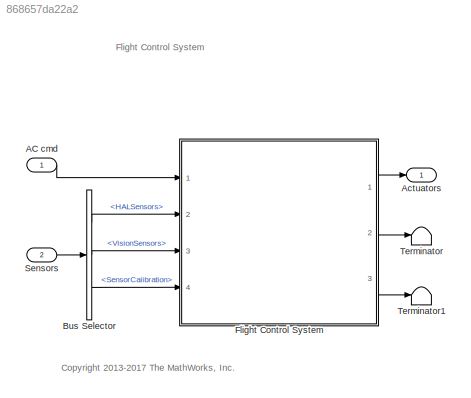
MODEL slx_868657da22a2
KIND model
CONFIG AbsTol = auto
CONFIG EnableMultiTasking = on
CONFIG FixedStep = Ts
CONFIG MaxStep = auto
CONFIG MinStep = auto
CONFIG RelTol = 1e-3
CONFIG SampleTimeConstraint = Unconstrained
CONFIG Solver = ode3
CONFIG SolverName = ode3
CONFIG StartTime = 0
CONFIG StopTime = 10.0
BLOCK [Inport] AC cmd
  BusOutputAsStruct = on
  IconDisplay = Port number
  OutDataTypeStr = Bus: CommandBus
BLOCK [Outport] Actuators
  IconDisplay = Port number
BLOCK [BusSelector] Bus Selector
  OutputAsBus = off
  OutputSignals = HALSensors,VisionSensors,SensorCalibration
  Ports = [1, 3]
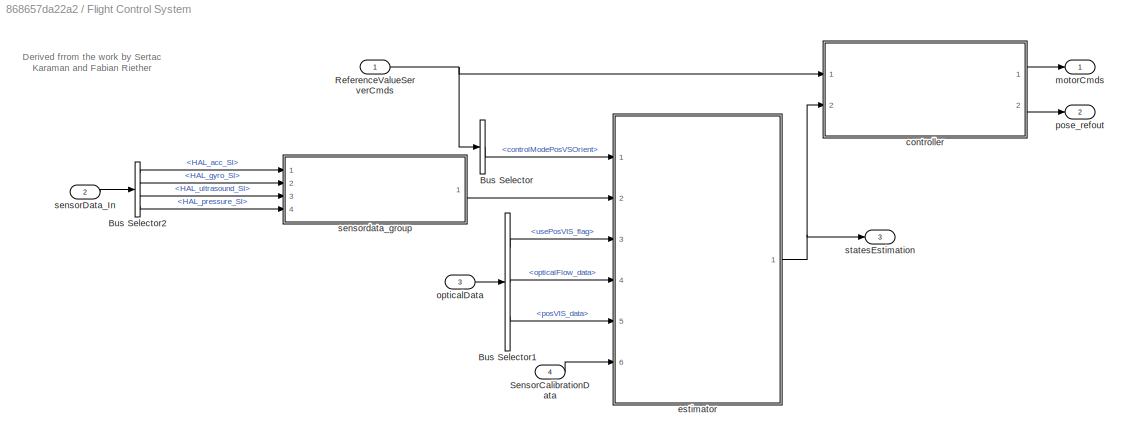
BLOCK [SubSystem] Flight Control System
  Ports = [4, 3]
  RTWSystemCode = Reusable function
  RequestExecContextInheritance = off
  Variant = off
BLOCK [BusSelector] Flight Control System/Bus Selector
  OutputAsBus = off
  OutputSignals = controlModePosVSOrient
  Ports = [1, 1]
BLOCK [BusSelector] Flight Control System/Bus Selector1
  OutputAsBus = off
  OutputSignals = usePosVIS_flag,opticalFlow_data,posVIS_data
  Ports = [1, 3]
BLOCK [BusSelector] Flight Control System/Bus Selector2
  OutputAsBus = off
  OutputSignals = HAL_acc_SI,HAL_gyro_SI,HAL_ultrasound_SI,HAL_pressure_SI
  Ports = [1, 4]
BLOCK [Inport] Flight Control System/ReferenceValueServerCmds
  IconDisplay = Port number
BLOCK [Inport] Flight Control System/SensorCalibrationData
  IconDisplay = Port number
  Port = 4
BLOCK [ModelReference] Flight Control System/controller
  ModelNameDialog = flightController.slx
  ModelReferenceVersion = 1.113
  Ports = [2, 2]
  Variant = off
BLOCK [ModelReference] Flight Control System/estimator
  ModelNameDialog = stateEstimator.slx
  ModelReferenceVersion = 1.38
  Ports = [6, 1]
  Variant = off
BLOCK [Outport] Flight Control System/motorCmds
  IconDisplay = Port number
BLOCK [Inport] Flight Control System/opticalData
  IconDisplay = Port number
  OutDataTypeStr = Bus: extraSensorData_t
  Port = 3
BLOCK [Outport] Flight Control System/pose_refout
  IconDisplay = Port number
  Port = 2
BLOCK [Inport] Flight Control System/sensorData_In
  IconDisplay = Port number
  OutDataTypeStr = Bus: HAL_acquisition_t
  Port = 2
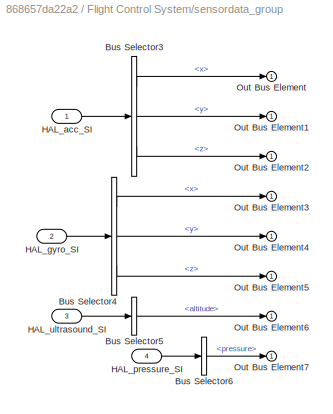
BLOCK [SubSystem] Flight Control System/sensordata_group
  Ports = [4, 1]
  RequestExecContextInheritance = off
  Variant = off
BLOCK [BusSelector] Flight Control System/sensordata_group/Bus Selector3
  OutputAsBus = off
  OutputSignals = x,y,z
  Ports = [1, 3]
BLOCK [BusSelector] Flight Control System/sensordata_group/Bus Selector4
  OutputAsBus = off
  OutputSignals = x,y,z
  Ports = [1, 3]
BLOCK [BusSelector] Flight Control System/sensordata_group/Bus Selector5
  OutputAsBus = off
  OutputSignals = altitude
  Ports = [1, 1]
BLOCK [BusSelector] Flight Control System/sensordata_group/Bus Selector6
  OutputAsBus = off
  OutputSignals = pressure
  Ports = [1, 1]
BLOCK [Inport] Flight Control System/sensordata_group/HAL_acc_SI
  IconDisplay = Port number
  OutDataTypeStr = Bus: HAL_acc_SI_t
BLOCK [Inport] Flight Control System/sensordata_group/HAL_gyro_SI
  IconDisplay = Port number
  OutDataTypeStr = Bus: HAL_gyro_SI_t
  Port = 2
BLOCK [Inport] Flight Control System/sensordata_group/HAL_pressure_SI
  IconDisplay = Port number
  OutDataTypeStr = Bus: HAL_pressure_SI_t
  Port = 4
BLOCK [Inport] Flight Control System/sensordata_group/HAL_ultrasound_SI
  IconDisplay = Port number
  OutDataTypeStr = Bus: HAL_ultrasound_SI_t
  Port = 3
BLOCK [Outport] Flight Control System/sensordata_group/Out Bus Element
  IconDisplay = Port number
BLOCK [Outport] Flight Control System/sensordata_group/Out Bus Element1
  IconDisplay = Port number
BLOCK [Outport] Flight Control System/sensordata_group/Out Bus Element2
  IconDisplay = Port number
BLOCK [Outport] Flight Control System/sensordata_group/Out Bus Element3
  IconDisplay = Port number
BLOCK [Outport] Flight Control System/sensordata_group/Out Bus Element4
  IconDisplay = Port number
BLOCK [Outport] Flight Control System/sensordata_group/Out Bus Element5
  IconDisplay = Port number
BLOCK [Outport] Flight Control System/sensordata_group/Out Bus Element6
  IconDisplay = Port number
BLOCK [Outport] Flight Control System/sensordata_group/Out Bus Element7
  IconDisplay = Port number
BLOCK [Outport] Flight Control System/statesEstimation
  IconDisplay = Port number
  OutDataTypeStr = Bus: statesEstim_t
  Port = 3
BLOCK [Inport] Sensors
  BusOutputAsStruct = on
  IconDisplay = Port number
  OutDataTypeStr = Bus: SensorsBus
  Port = 2
BLOCK [Terminator] Terminator
BLOCK [Terminator] Terminator1
ANNOTATION (root): <copyright redacted>
ANNOTATION (root): Flight Control System
ANNOTATION Flight Control System: Derived frrom the work by Sertac Karaman and Fabian Riether
LINE AC cmd:1 -> Flight Control System:1
LINE Bus Selector:1 -> Flight Control System:2
LINE Bus Selector:2 -> Flight Control System:3
LINE Bus Selector:3 -> Flight Control System:4
LINE Flight Control System/Bus Selector1:1 -> Flight Control System/estimator:3
LINE Flight Control System/Bus Selector1:2 -> Flight Control System/estimator:4
LINE Flight Control System/Bus Selector1:3 -> Flight Control System/estimator:5
LINE Flight Control System/Bus Selector2:1 -> Flight Control System/sensordata_group:1
LINE Flight Control System/Bus Selector2:2 -> Flight Control System/sensordata_group:2
LINE Flight Control System/Bus Selector2:3 -> Flight Control System/sensordata_group:3
LINE Flight Control System/Bus Selector2:4 -> Flight Control System/sensordata_group:4
LINE Flight Control System/Bus Selector:1 -> Flight Control System/estimator:1
NET Flight Control System/ReferenceValueServerCmds:1 -> Flight Control System/Bus Selector:1, Flight Control System/controller:1
LINE Flight Control System/SensorCalibrationData:1 -> Flight Control System/estimator:6
LINE Flight Control System/controller:1 -> Flight Control System/motorCmds:1
LINE Flight Control System/controller:2 -> Flight Control System/pose_refout:1
NET Flight Control System/estimator:1 -> Flight Control System/controller:2, Flight Control System/statesEstimation:1
LINE Flight Control System/opticalData:1 -> Flight Control System/Bus Selector1:1
LINE Flight Control System/sensorData_In:1 -> Flight Control System/Bus Selector2:1
LINE Flight Control System/sensordata_group/Bus Selector3:1 -> Flight Control System/sensordata_group/Out Bus Element:1
LINE Flight Control System/sensordata_group/Bus Selector3:2 -> Flight Control System/sensordata_group/Out Bus Element1:1
LINE Flight Control System/sensordata_group/Bus Selector3:3 -> Flight Control System/sensordata_group/Out Bus Element2:1
LINE Flight Control System/sensordata_group/Bus Selector4:1 -> Flight Control System/sensordata_group/Out Bus Element3:1
LINE Flight Control System/sensordata_group/Bus Selector4:2 -> Flight Control System/sensordata_group/Out Bus Element4:1
LINE Flight Control System/sensordata_group/Bus Selector4:3 -> Flight Control System/sensordata_group/Out Bus Element5:1
LINE Flight Control System/sensordata_group/Bus Selector5:1 -> Flight Control System/sensordata_group/Out Bus Element6:1
LINE Flight Control System/sensordata_group/Bus Selector6:1 -> Flight Control System/sensordata_group/Out Bus Element7:1
LINE Flight Control System/sensordata_group/HAL_acc_SI:1 -> Flight Control System/sensordata_group/Bus Selector3:1
LINE Flight Control System/sensordata_group/HAL_gyro_SI:1 -> Flight Control System/sensordata_group/Bus Selector4:1
LINE Flight Control System/sensordata_group/HAL_pressure_SI:1 -> Flight Control System/sensordata_group/Bus Selector6:1
LINE Flight Control System/sensordata_group/HAL_ultrasound_SI:1 -> Flight Control System/sensordata_group/Bus Selector5:1
LINE Flight Control System/sensordata_group:1 -> Flight Control System/estimator:2
LINE Flight Control System:1 -> Actuators:1
LINE Flight Control System:2 -> Terminator:1
LINE Flight Control System:3 -> Terminator1:1
LINE Sensors:1 -> Bus Selector:1
note: NET lines group one-source signal fan-out (src -> all destinations, sorted); 1:1 wires keep LINE
